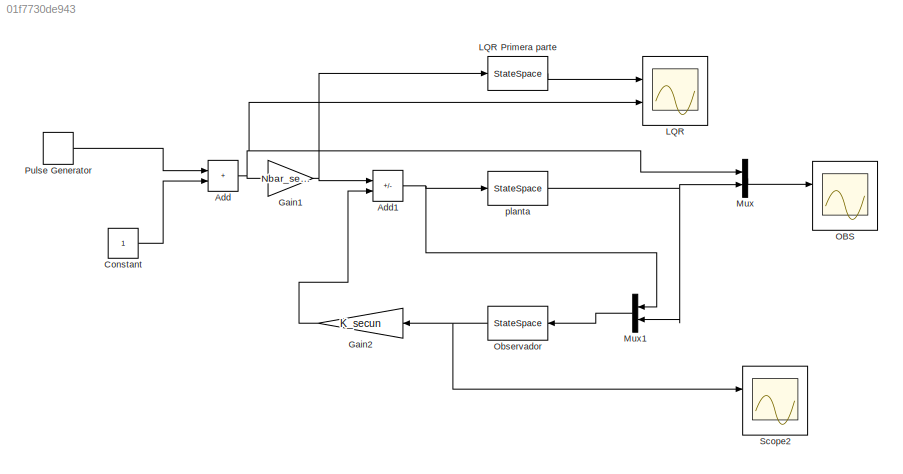
MODEL slx_01f7730de943
KIND model
CONFIG AbsTol = auto
CONFIG EnableMultiTasking = off
CONFIG FixedStep = auto
CONFIG MaxStep = auto
CONFIG MinStep = auto
CONFIG RelTol = 1e-3
CONFIG SampleTimeConstraint = Unconstrained
CONFIG SolverName = VariableStepAuto
CONFIG StartTime = 0.0
CONFIG StopTime = F
BLOCK [Sum] Add
  IconShape = rectangular
  Ports = [2, 1]
BLOCK [Sum] Add1
  IconShape = rectangular
  Inputs = +-
  Ports = [2, 1]
BLOCK [Constant] Constant
BLOCK [Gain] Gain1
  Gain = Nbar_secun
BLOCK [Gain] Gain2
  Gain = K_secun
  Multiplication = Matrix(K*u) (u vector)
  NameLocation = top
BLOCK [Scope] LQR
  Floating = off
  NumInputPorts = 2
  Ports = [2]
  ScopeSpecificationString = Simulink.scopes.TimeScopeBlockCfg('CurrentConfiguration', extmgr.ConfigurationSet(extmgr.Configuration('Core','General UI',true),extmgr.Configuration('Core','Source UI',true),extmgr.Configuration('Sources','WiredSimulink',true),extmgr.Configuration('Visuals','Time Domain',true,'SerializedDisplays',{struct('MinYLimReal','-0.26241','MaxYLimReal','2.3617','YLabelReal','','MinYLimMag','0.00000','MaxYL...<+1370ch>
BLOCK [StateSpace] LQR Primera parte
  A = Acl_secun
  B = B3
  C = C3
  D = 0
  InitialCondition = 0
  ParameterTunability = Unconstrained
  Ports = [1, 1]
BLOCK [Mux] Mux
  DisplayOption = bar
  Inputs = 2
  Ports = [2, 1]
BLOCK [Mux] Mux1
  DisplayOption = bar
  Inputs = 2
  NameLocation = top
  Ports = [2, 1]
BLOCK [Scope] OBS
  Floating = off
  NumInputPorts = 2
  Ports = [2]
  ScopeSpecificationString = Simulink.scopes.TimeScopeBlockCfg('CurrentConfiguration', extmgr.ConfigurationSet(extmgr.Configuration('Core','General UI',true),extmgr.Configuration('Core','Source UI',true),extmgr.Configuration('Sources','WiredSimulink',true,'DataLoggingVariableName','ScopeData1'),extmgr.Configuration('Visuals','Time Domain',true,'SerializedDisplays',{struct('MinYLimReal','-90034421355302459631879215602177202700...<+3828ch>
BLOCK [StateSpace] Observador
  A = A3-L_new*C3
  B = [B3 Lpp]
  C = [1 0 0; 0 1 0; 0 0 1]
  D = zeros(3,2)
  InitialCondition = 0
  NameLocation = top
  ParameterTunability = Unconstrained
  Ports = [1, 1]
BLOCK [DiscretePulseGenerator] Pulse Generator
  Period = T
  PhaseDelay = 0.75
  Ports = [0, 1]
  PulseType = Time based
  PulseWidth = 50
BLOCK [Scope] Scope2
  Floating = off
  NumInputPorts = 2
  Ports = [2]
  ScopeSpecificationString = Simulink.scopes.TimeScopeBlockCfg('CurrentConfiguration', extmgr.ConfigurationSet(extmgr.Configuration('Core','General UI',true),extmgr.Configuration('Core','Source UI',true),extmgr.Configuration('Sources','WiredSimulink',true,'DataLoggingVariableName','ScopeData2'),extmgr.Configuration('Visuals','Time Domain',true,'SerializedDisplays',{struct('MinYLimReal','-0.71758','MaxYLimReal','5.09653','YLab...<+1465ch>
BLOCK [StateSpace] planta
  A = A3
  B = B3
  C = C3
  D = 0
  InitialCondition = 0
  ParameterTunability = Unconstrained
  Ports = [1, 1]
NET Add1:1 -> Mux1:1, planta:1
NET Add:1 -> Gain1:1, LQR:2, Mux:1
LINE Constant:1 -> Add:2
NET Gain1:1 -> Add1:1, LQR Primera parte:1
LINE Gain2:1 -> Add1:2
LINE LQR Primera parte:1 -> LQR:1
LINE Mux1:1 -> Observador:1
LINE Mux:1 -> OBS:1
NET Observador:1 -> Gain2:1, Scope2:1
LINE Pulse Generator:1 -> Add:1
NET planta:1 -> Mux1:2, Mux:2
note: NET lines group one-source signal fan-out (src -> all destinations, sorted); 1:1 wires keep LINE
